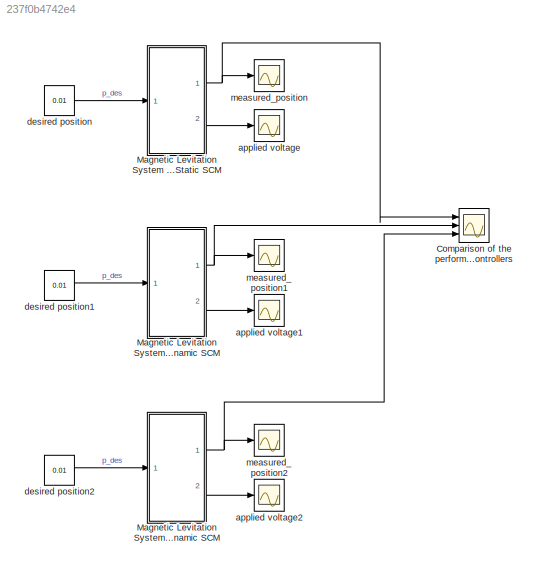
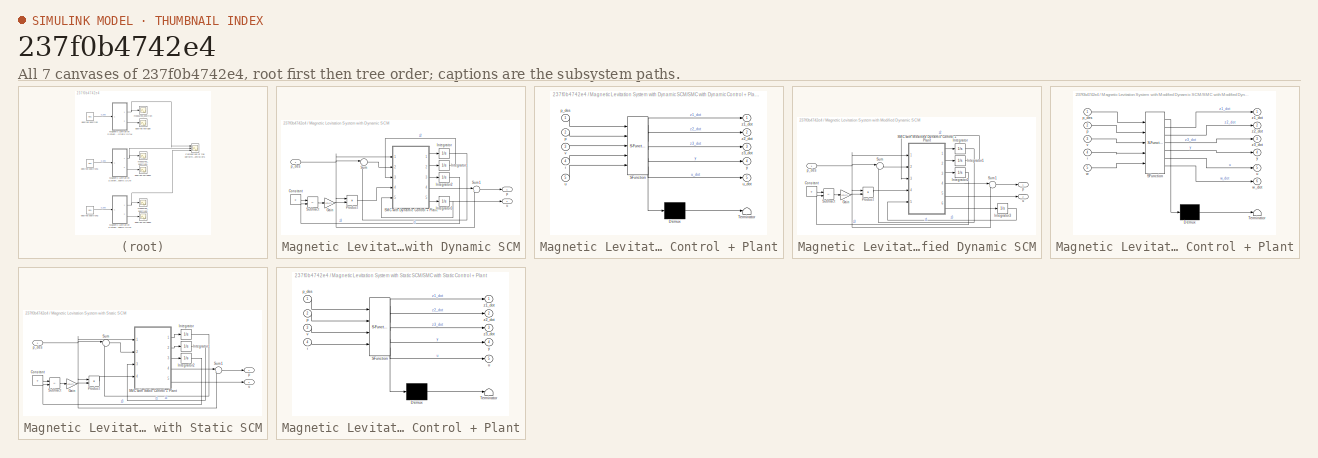
[diagram: thumbnail index - all 7 canvases of the model, root first then tree order]
MODEL slx_237f0b4742e4
KIND model
CONFIG AbsTol = auto
CONFIG EnableMultiTasking = off
CONFIG FixedStep = 0.0001
CONFIG MaxStep = auto
CONFIG MinStep = auto
CONFIG RelTol = 1e-3
CONFIG SampleTimeConstraint = Unconstrained
CONFIG SolverName = ode1
CONFIG StartTime = 0.0
CONFIG StopTime = 1
WORKSPACE source: mxarray member
WORKSPACE C = 0.00014
WORKSPACE g = 9.81
WORKSPACE m = 0.0118
BLOCK [Scope] Comparison of the performance of the 3 Controllers
  Floating = off
  NumInputPorts = 3
  Ports = [3]
  ScopeSpecificationString = Simulink.scopes.TimeScopeBlockCfg('CurrentConfiguration', extmgr.ConfigurationSet(extmgr.Configuration('Core','General UI',true),extmgr.Configuration('Core','Source UI',true),extmgr.Configuration('Sources','WiredSimulink',true,'DataLoggingVariableName','ScopeData6'),extmgr.Configuration('Visuals','Time Domain',true,'SerializedDisplays',{struct('MinYLimReal','0.00833','MaxYLimReal','0.01907','YLabe...<+1581ch>
BLOCK [SubSystem] Magnetic Levitation System with Dynamic SCM
  Ports = [1, 2]
  RequestExecContextInheritance = off
BLOCK [Constant] Magnetic Levitation System with Dynamic SCM/Constant
  Value = g
BLOCK [Gain] Magnetic Levitation System with Dynamic SCM/Gain
  Gain = (m/C)
BLOCK [Integrator] Magnetic Levitation System with Dynamic SCM/Integrator
  InitialCondition = 0.008
  Ports = [1, 1]
BLOCK [Integrator] Magnetic Levitation System with Dynamic SCM/Integrator1
  Ports = [1, 1]
BLOCK [Integrator] Magnetic Levitation System with Dynamic SCM/Integrator2
  InitialCondition = 9
  Ports = [1, 1]
BLOCK [Integrator] Magnetic Levitation System with Dynamic SCM/Integrator3
  InitialCondition = 20
  Ports = [1, 1]
BLOCK [Product] Magnetic Levitation System with Dynamic SCM/Product
  Ports = [2, 1]
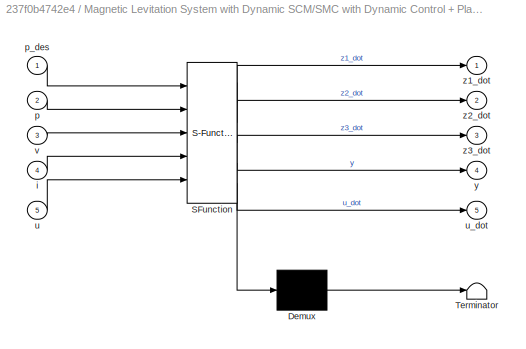
BLOCK [SubSystem] Magnetic Levitation System with Dynamic SCM/SMC with Dynamic Control + Plant
  ErrorFcn = Stateflow.Translate.translate
  PermitHierarchicalResolution = ExplicitOnly
  Ports = [5, 5]
  RequestExecContextInheritance = off
  SFBlockType = MATLAB Function
  TreatAsAtomicUnit = on
BLOCK [Demux] Magnetic Levitation System with Dynamic SCM/SMC with Dynamic Control + Plant/ Demux 
  Outputs = 1
  Ports = [1, 1]
BLOCK [S-Function] Magnetic Levitation System with Dynamic SCM/SMC with Dynamic Control + Plant/ SFunction 
  EnableBusSupport = on
  FunctionName = sf_sfun
  PortCounts = [5 6]
  Ports = [5, 6]
  SFcnIsStateOwnerBlock = off
  SFunctionDeploymentMode = off
  Tag = Stateflow S-Function 1
BLOCK [Terminator] Magnetic Levitation System with Dynamic SCM/SMC with Dynamic Control + Plant/ Terminator 
BLOCK [Inport] Magnetic Levitation System with Dynamic SCM/SMC with Dynamic Control + Plant/i
  Port = 4
BLOCK [Inport] Magnetic Levitation System with Dynamic SCM/SMC with Dynamic Control + Plant/p
  Port = 2
BLOCK [Inport] Magnetic Levitation System with Dynamic SCM/SMC with Dynamic Control + Plant/p_des
BLOCK [Inport] Magnetic Levitation System with Dynamic SCM/SMC with Dynamic Control + Plant/u
  Port = 5
BLOCK [Outport] Magnetic Levitation System with Dynamic SCM/SMC with Dynamic Control + Plant/u_dot
  Port = 5
BLOCK [Inport] Magnetic Levitation System with Dynamic SCM/SMC with Dynamic Control + Plant/v
  Port = 3
BLOCK [Outport] Magnetic Levitation System with Dynamic SCM/SMC with Dynamic Control + Plant/y
  Port = 4
BLOCK [Outport] Magnetic Levitation System with Dynamic SCM/SMC with Dynamic Control + Plant/z1_dot
BLOCK [Outport] Magnetic Levitation System with Dynamic SCM/SMC with Dynamic Control + Plant/z2_dot
  Port = 2
BLOCK [Outport] Magnetic Levitation System with Dynamic SCM/SMC with Dynamic Control + Plant/z3_dot
  Port = 3
BLOCK [Sum] Magnetic Levitation System with Dynamic SCM/Subtract
  IconShape = rectangular
  Inputs = +-
  Ports = [2, 1]
BLOCK [Sum] Magnetic Levitation System with Dynamic SCM/Sum
  Inputs = |++
  NameLocation = top
  Ports = [2, 1]
BLOCK [Sum] Magnetic Levitation System with Dynamic SCM/Sum1
  Inputs = |++
  Ports = [2, 1]
BLOCK [Outport] Magnetic Levitation System with Dynamic SCM/p
BLOCK [Inport] Magnetic Levitation System with Dynamic SCM/p_des
BLOCK [Outport] Magnetic Levitation System with Dynamic SCM/u
  Port = 2
BLOCK [SubSystem] Magnetic Levitation System with Modified Dynamic SCM
  Ports = [1, 2]
  RequestExecContextInheritance = off
BLOCK [Constant] Magnetic Levitation System with Modified Dynamic SCM/Constant
  Value = g
BLOCK [Gain] Magnetic Levitation System with Modified Dynamic SCM/Gain
  Gain = (m/C)
BLOCK [Integrator] Magnetic Levitation System with Modified Dynamic SCM/Integrator
  InitialCondition = 0.008
  Ports = [1, 1]
BLOCK [Integrator] Magnetic Levitation System with Modified Dynamic SCM/Integrator1
  Ports = [1, 1]
BLOCK [Integrator] Magnetic Levitation System with Modified Dynamic SCM/Integrator2
  InitialCondition = 9
  Ports = [1, 1]
BLOCK [Integrator] Magnetic Levitation System with Modified Dynamic SCM/Integrator3
  Ports = [1, 1]
BLOCK [Product] Magnetic Levitation System with Modified Dynamic SCM/Product
  Ports = [2, 1]
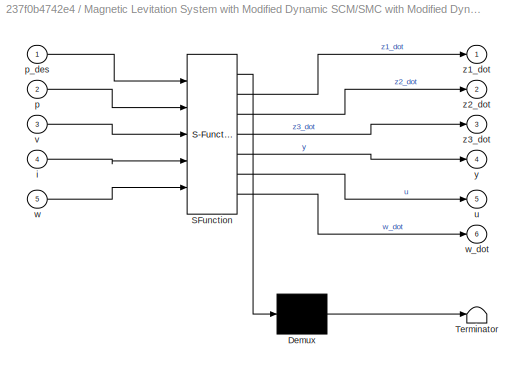
BLOCK [SubSystem] Magnetic Levitation System with Modified Dynamic SCM/SMC with Modified Dynamic Control + Plant
  ErrorFcn = Stateflow.Translate.translate
  PermitHierarchicalResolution = ExplicitOnly
  Ports = [5, 6]
  RequestExecContextInheritance = off
  SFBlockType = MATLAB Function
  TreatAsAtomicUnit = on
BLOCK [Demux] Magnetic Levitation System with Modified Dynamic SCM/SMC with Modified Dynamic Control + Plant/ Demux 
  Outputs = 1
  Ports = [1, 1]
BLOCK [S-Function] Magnetic Levitation System with Modified Dynamic SCM/SMC with Modified Dynamic Control + Plant/ SFunction 
  EnableBusSupport = on
  FunctionName = sf_sfun
  PortCounts = [5 7]
  Ports = [5, 7]
  SFcnIsStateOwnerBlock = off
  SFunctionDeploymentMode = off
  Tag = Stateflow S-Function 3
BLOCK [Terminator] Magnetic Levitation System with Modified Dynamic SCM/SMC with Modified Dynamic Control + Plant/ Terminator 
BLOCK [Inport] Magnetic Levitation System with Modified Dynamic SCM/SMC with Modified Dynamic Control + Plant/i
  Port = 4
BLOCK [Inport] Magnetic Levitation System with Modified Dynamic SCM/SMC with Modified Dynamic Control + Plant/p
  Port = 2
BLOCK [Inport] Magnetic Levitation System with Modified Dynamic SCM/SMC with Modified Dynamic Control + Plant/p_des
BLOCK [Outport] Magnetic Levitation System with Modified Dynamic SCM/SMC with Modified Dynamic Control + Plant/u
  Port = 5
BLOCK [Inport] Magnetic Levitation System with Modified Dynamic SCM/SMC with Modified Dynamic Control + Plant/v
  Port = 3
BLOCK [Inport] Magnetic Levitation System with Modified Dynamic SCM/SMC with Modified Dynamic Control + Plant/w
  Port = 5
BLOCK [Outport] Magnetic Levitation System with Modified Dynamic SCM/SMC with Modified Dynamic Control + Plant/w_dot
  Port = 6
BLOCK [Outport] Magnetic Levitation System with Modified Dynamic SCM/SMC with Modified Dynamic Control + Plant/y
  Port = 4
BLOCK [Outport] Magnetic Levitation System with Modified Dynamic SCM/SMC with Modified Dynamic Control + Plant/z1_dot
BLOCK [Outport] Magnetic Levitation System with Modified Dynamic SCM/SMC with Modified Dynamic Control + Plant/z2_dot
  Port = 2
BLOCK [Outport] Magnetic Levitation System with Modified Dynamic SCM/SMC with Modified Dynamic Control + Plant/z3_dot
  Port = 3
BLOCK [Sum] Magnetic Levitation System with Modified Dynamic SCM/Subtract
  IconShape = rectangular
  Inputs = +-
  Ports = [2, 1]
BLOCK [Sum] Magnetic Levitation System with Modified Dynamic SCM/Sum
  Inputs = |++
  NameLocation = top
  Ports = [2, 1]
BLOCK [Sum] Magnetic Levitation System with Modified Dynamic SCM/Sum1
  Inputs = |++
  Ports = [2, 1]
BLOCK [Outport] Magnetic Levitation System with Modified Dynamic SCM/p
BLOCK [Inport] Magnetic Levitation System with Modified Dynamic SCM/p_des
BLOCK [Outport] Magnetic Levitation System with Modified Dynamic SCM/u
  Port = 2
BLOCK [SubSystem] Magnetic Levitation System with Static SCM
  Ports = [1, 2]
  RequestExecContextInheritance = off
BLOCK [Constant] Magnetic Levitation System with Static SCM/Constant
  Value = g
BLOCK [Gain] Magnetic Levitation System with Static SCM/Gain
  Gain = (m/C)
BLOCK [Integrator] Magnetic Levitation System with Static SCM/Integrator
  InitialCondition = 0.008
  Ports = [1, 1]
BLOCK [Integrator] Magnetic Levitation System with Static SCM/Integrator1
  Ports = [1, 1]
BLOCK [Integrator] Magnetic Levitation System with Static SCM/Integrator2
  InitialCondition = 9
  Ports = [1, 1]
BLOCK [Product] Magnetic Levitation System with Static SCM/Product
  Ports = [2, 1]
BLOCK [SubSystem] Magnetic Levitation System with Static SCM/SMC with Static Control + Plant
  ErrorFcn = Stateflow.Translate.translate
  PermitHierarchicalResolution = ExplicitOnly
  Ports = [4, 5]
  RequestExecContextInheritance = off
  SFBlockType = MATLAB Function
  TreatAsAtomicUnit = on
BLOCK [Demux] Magnetic Levitation System with Static SCM/SMC with Static Control + Plant/ Demux 
  Outputs = 1
  Ports = [1, 1]
BLOCK [S-Function] Magnetic Levitation System with Static SCM/SMC with Static Control + Plant/ SFunction 
  EnableBusSupport = on
  FunctionName = sf_sfun
  PortCounts = [4 6]
  Ports = [4, 6]
  SFcnIsStateOwnerBlock = off
  SFunctionDeploymentMode = off
  Tag = Stateflow S-Function 2
BLOCK [Terminator] Magnetic Levitation System with Static SCM/SMC with Static Control + Plant/ Terminator 
BLOCK [Inport] Magnetic Levitation System with Static SCM/SMC with Static Control + Plant/i
  Port = 4
BLOCK [Inport] Magnetic Levitation System with Static SCM/SMC with Static Control + Plant/p
  Port = 2
BLOCK [Inport] Magnetic Levitation System with Static SCM/SMC with Static Control + Plant/p_des
BLOCK [Outport] Magnetic Levitation System with Static SCM/SMC with Static Control + Plant/u
  Port = 5
BLOCK [Inport] Magnetic Levitation System with Static SCM/SMC with Static Control + Plant/v
  Port = 3
BLOCK [Outport] Magnetic Levitation System with Static SCM/SMC with Static Control + Plant/y
  Port = 4
BLOCK [Outport] Magnetic Levitation System with Static SCM/SMC with Static Control + Plant/z1_dot
BLOCK [Outport] Magnetic Levitation System with Static SCM/SMC with Static Control + Plant/z2_dot
  Port = 2
BLOCK [Outport] Magnetic Levitation System with Static SCM/SMC with Static Control + Plant/z3_dot
  Port = 3
BLOCK [Sum] Magnetic Levitation System with Static SCM/Subtract
  IconShape = rectangular
  Inputs = +-
  Ports = [2, 1]
BLOCK [Sum] Magnetic Levitation System with Static SCM/Sum
  Inputs = |++
  NameLocation = top
  Ports = [2, 1]
BLOCK [Sum] Magnetic Levitation System with Static SCM/Sum1
  Inputs = |++
  Ports = [2, 1]
BLOCK [Outport] Magnetic Levitation System with Static SCM/p
BLOCK [Inport] Magnetic Levitation System with Static SCM/p_des
BLOCK [Outport] Magnetic Levitation System with Static SCM/u
  Port = 2
BLOCK [Scope] applied voltage
  Floating = off
  NumInputPorts = 1
  Ports = [1]
  ScopeSpecificationString = Simulink.scopes.TimeScopeBlockCfg('CurrentConfiguration', extmgr.ConfigurationSet(extmgr.Configuration('Core','General UI',true),extmgr.Configuration('Core','Source UI',true),extmgr.Configuration('Sources','WiredSimulink',true,'DataLoggingVariableName','ScopeData1'),extmgr.Configuration('Visuals','Time Domain',true,'SerializedDisplays',{struct('MinYLimReal','2.73557','MaxYLimReal','20.31509','YLab...<+1477ch>
BLOCK [Scope] applied voltage1
  Floating = off
  NumInputPorts = 1
  Ports = [1]
  ScopeSpecificationString = Simulink.scopes.TimeScopeBlockCfg('CurrentConfiguration', extmgr.ConfigurationSet(extmgr.Configuration('Core','General UI',true),extmgr.Configuration('Core','Source UI',true),extmgr.Configuration('Sources','WiredSimulink',true,'DataLoggingVariableName','ScopeData2'),extmgr.Configuration('Visuals','Time Domain',true,'SerializedDisplays',{struct('MinYLimReal','6.69412','MaxYLimReal','21.47843','YLab...<+1450ch>
BLOCK [Scope] applied voltage2
  Floating = off
  NumInputPorts = 1
  Ports = [1]
  ScopeSpecificationString = Simulink.scopes.TimeScopeBlockCfg('CurrentConfiguration', extmgr.ConfigurationSet(extmgr.Configuration('Core','General UI',true),extmgr.Configuration('Core','Source UI',true),extmgr.Configuration('Sources','WiredSimulink',true,'DataLoggingVariableName','ScopeData4'),extmgr.Configuration('Visuals','Time Domain',true,'SerializedDisplays',{struct('MinYLimReal','7.17984','MaxYLimReal','17.53926','YLab...<+1459ch>
BLOCK [Constant] desired position
  Value = 0.01
BLOCK [Constant] desired position1
  Value = 0.01
BLOCK [Constant] desired position2
  Value = 0.01
BLOCK [Scope] measured_position
  Floating = off
  NumInputPorts = 1
  Ports = [1]
  ScopeSpecificationString = Simulink.scopes.TimeScopeBlockCfg('CurrentConfiguration', extmgr.ConfigurationSet(extmgr.Configuration('Core','General UI',true),extmgr.Configuration('Core','Source UI',true),extmgr.Configuration('Sources','WiredSimulink',true),extmgr.Configuration('Visuals','Time Domain',true,'SerializedDisplays',{struct('MinYLimReal','0.00833','MaxYLimReal','0.01907','YLabelReal','','MinYLimMag','0.00833','MaxYL...<+1439ch>
BLOCK [Scope] measured_position1
  Floating = off
  NumInputPorts = 1
  Ports = [1]
  ScopeSpecificationString = Simulink.scopes.TimeScopeBlockCfg('CurrentConfiguration', extmgr.ConfigurationSet(extmgr.Configuration('Core','General UI',true),extmgr.Configuration('Core','Source UI',true),extmgr.Configuration('Sources','WiredSimulink',true,'DataLoggingVariableName','ScopeData3'),extmgr.Configuration('Visuals','Time Domain',true,'SerializedDisplays',{struct('MinYLimReal','0.00894','MaxYLimReal','0.01901','YLabe...<+1755ch>
BLOCK [Scope] measured_position2
  Floating = off
  NumInputPorts = 1
  Ports = [1]
  ScopeSpecificationString = Simulink.scopes.TimeScopeBlockCfg('CurrentConfiguration', extmgr.ConfigurationSet(extmgr.Configuration('Core','General UI',true),extmgr.Configuration('Core','Source UI',true),extmgr.Configuration('Sources','WiredSimulink',true,'DataLoggingVariableName','ScopeData5'),extmgr.Configuration('Visuals','Time Domain',true,'SerializedDisplays',{struct('MinYLimReal','0.00895','MaxYLimReal','0.01901','YLabe...<+1731ch>
LINE Magnetic Levitation System with Dynamic SCM/Constant:1 -> Magnetic Levitation System with Dynamic SCM/Subtract:1
LINE Magnetic Levitation System with Dynamic SCM/Gain:1 -> Magnetic Levitation System with Dynamic SCM/Product:2
LINE Magnetic Levitation System with Dynamic SCM/Integrator1:1 -> Magnetic Levitation System with Dynamic SCM/SMC with Dynamic Control + Plant:3
LINE Magnetic Levitation System with Dynamic SCM/Integrator2:1 -> Magnetic Levitation System with Dynamic SCM/Subtract:2
NET Magnetic Levitation System with Dynamic SCM/Integrator3:1 -> Magnetic Levitation System with Dynamic SCM/SMC with Dynamic Control + Plant:5, Magnetic Levitation System with Dynamic SCM/u:1
LINE Magnetic Levitation System with Dynamic SCM/Integrator:1 -> Magnetic Levitation System with Dynamic SCM/Sum:2
LINE Magnetic Levitation System with Dynamic SCM/Product:1 -> Magnetic Levitation System with Dynamic SCM/SMC with Dynamic Control + Plant:4
LINE Magnetic Levitation System with Dynamic SCM/SMC with Dynamic Control + Plant:1 -> Magnetic Levitation System with Dynamic SCM/Integrator:1
LINE Magnetic Levitation System with Dynamic SCM/SMC with Dynamic Control + Plant:2 -> Magnetic Levitation System with Dynamic SCM/Integrator1:1
LINE Magnetic Levitation System with Dynamic SCM/SMC with Dynamic Control + Plant:3 -> Magnetic Levitation System with Dynamic SCM/Integrator2:1
LINE Magnetic Levitation System with Dynamic SCM/SMC with Dynamic Control + Plant:4 -> Magnetic Levitation System with Dynamic SCM/Sum1:1
LINE Magnetic Levitation System with Dynamic SCM/SMC with Dynamic Control + Plant:5 -> Magnetic Levitation System with Dynamic SCM/Integrator3:1
LINE Magnetic Levitation System with Dynamic SCM/Subtract:1 -> Magnetic Levitation System with Dynamic SCM/Gain:1
LINE Magnetic Levitation System with Dynamic SCM/Sum1:1 -> Magnetic Levitation System with Dynamic SCM/p:1
LINE Magnetic Levitation System with Dynamic SCM/Sum:1 -> Magnetic Levitation System with Dynamic SCM/SMC with Dynamic Control + Plant:2
NET Magnetic Levitation System with Dynamic SCM/p_des:1 -> Magnetic Levitation System with Dynamic SCM/Product:1, Magnetic Levitation System with Dynamic SCM/SMC with Dynamic Control + Plant:1, Magnetic Levitation System with Dynamic SCM/Sum1:2, Magnetic Levitation System with Dynamic SCM/Sum:1
NET Magnetic Levitation System with Dynamic SCM:1 -> Comparison of the performance of the 3 Controllers:2, measured_position1:1
LINE Magnetic Levitation System with Dynamic SCM:2 -> applied voltage1:1
LINE Magnetic Levitation System with Modified Dynamic SCM/Constant:1 -> Magnetic Levitation System with Modified Dynamic SCM/Subtract:1
LINE Magnetic Levitation System with Modified Dynamic SCM/Gain:1 -> Magnetic Levitation System with Modified Dynamic SCM/Product:2
LINE Magnetic Levitation System with Modified Dynamic SCM/Integrator1:1 -> Magnetic Levitation System with Modified Dynamic SCM/SMC with Modified Dynamic Control + Plant:3
LINE Magnetic Levitation System with Modified Dynamic SCM/Integrator2:1 -> Magnetic Levitation System with Modified Dynamic SCM/Subtract:2
LINE Magnetic Levitation System with Modified Dynamic SCM/Integrator3:1 -> Magnetic Levitation System with Modified Dynamic SCM/SMC with Modified Dynamic Control + Plant:5
LINE Magnetic Levitation System with Modified Dynamic SCM/Integrator:1 -> Magnetic Levitation System with Modified Dynamic SCM/Sum:2
LINE Magnetic Levitation System with Modified Dynamic SCM/Product:1 -> Magnetic Levitation System with Modified Dynamic SCM/SMC with Modified Dynamic Control + Plant:4
LINE Magnetic Levitation System with Modified Dynamic SCM/SMC with Modified Dynamic Control + Plant:1 -> Magnetic Levitation System with Modified Dynamic SCM/Integrator:1
LINE Magnetic Levitation System with Modified Dynamic SCM/SMC with Modified Dynamic Control + Plant:2 -> Magnetic Levitation System with Modified Dynamic SCM/Integrator1:1
LINE Magnetic Levitation System with Modified Dynamic SCM/SMC with Modified Dynamic Control + Plant:3 -> Magnetic Levitation System with Modified Dynamic SCM/Integrator2:1
LINE Magnetic Levitation System with Modified Dynamic SCM/SMC with Modified Dynamic Control + Plant:4 -> Magnetic Levitation System with Modified Dynamic SCM/Sum1:1
LINE Magnetic Levitation System with Modified Dynamic SCM/SMC with Modified Dynamic Control + Plant:5 -> Magnetic Levitation System with Modified Dynamic SCM/u:1
LINE Magnetic Levitation System with Modified Dynamic SCM/SMC with Modified Dynamic Control + Plant:6 -> Magnetic Levitation System with Modified Dynamic SCM/Integrator3:1
LINE Magnetic Levitation System with Modified Dynamic SCM/Subtract:1 -> Magnetic Levitation System with Modified Dynamic SCM/Gain:1
LINE Magnetic Levitation System with Modified Dynamic SCM/Sum1:1 -> Magnetic Levitation System with Modified Dynamic SCM/p:1
LINE Magnetic Levitation System with Modified Dynamic SCM/Sum:1 -> Magnetic Levitation System with Modified Dynamic SCM/SMC with Modified Dynamic Control + Plant:2
NET Magnetic Levitation System with Modified Dynamic SCM/p_des:1 -> Magnetic Levitation System with Modified Dynamic SCM/Product:1, Magnetic Levitation System with Modified Dynamic SCM/SMC with Modified Dynamic Control + Plant:1, Magnetic Levitation System with Modified Dynamic SCM/Sum1:2, Magnetic Levitation System with Modified Dynamic SCM/Sum:1
NET Magnetic Levitation System with Modified Dynamic SCM:1 -> Comparison of the performance of the 3 Controllers:3, measured_position2:1
LINE Magnetic Levitation System with Modified Dynamic SCM:2 -> applied voltage2:1
LINE Magnetic Levitation System with Static SCM/Constant:1 -> Magnetic Levitation System with Static SCM/Subtract:1
LINE Magnetic Levitation System with Static SCM/Gain:1 -> Magnetic Levitation System with Static SCM/Product:2
LINE Magnetic Levitation System with Static SCM/Integrator1:1 -> Magnetic Levitation System with Static SCM/SMC with Static Control + Plant:3
LINE Magnetic Levitation System with Static SCM/Integrator2:1 -> Magnetic Levitation System with Static SCM/Subtract:2
LINE Magnetic Levitation System with Static SCM/Integrator:1 -> Magnetic Levitation System with Static SCM/Sum:2
LINE Magnetic Levitation System with Static SCM/Product:1 -> Magnetic Levitation System with Static SCM/SMC with Static Control + Plant:4
LINE Magnetic Levitation System with Static SCM/SMC with Static Control + Plant:1 -> Magnetic Levitation System with Static SCM/Integrator:1
LINE Magnetic Levitation System with Static SCM/SMC with Static Control + Plant:2 -> Magnetic Levitation System with Static SCM/Integrator1:1
LINE Magnetic Levitation System with Static SCM/SMC with Static Control + Plant:3 -> Magnetic Levitation System with Static SCM/Integrator2:1
LINE Magnetic Levitation System with Static SCM/SMC with Static Control + Plant:4 -> Magnetic Levitation System with Static SCM/Sum1:1
LINE Magnetic Levitation System with Static SCM/SMC with Static Control + Plant:5 -> Magnetic Levitation System with Static SCM/u:1
LINE Magnetic Levitation System with Static SCM/Subtract:1 -> Magnetic Levitation System with Static SCM/Gain:1
LINE Magnetic Levitation System with Static SCM/Sum1:1 -> Magnetic Levitation System with Static SCM/p:1
LINE Magnetic Levitation System with Static SCM/Sum:1 -> Magnetic Levitation System with Static SCM/SMC with Static Control + Plant:2
NET Magnetic Levitation System with Static SCM/p_des:1 -> Magnetic Levitation System with Static SCM/Product:1, Magnetic Levitation System with Static SCM/SMC with Static Control + Plant:1, Magnetic Levitation System with Static SCM/Sum1:2, Magnetic Levitation System with Static SCM/Sum:1
NET Magnetic Levitation System with Static SCM:1 -> Comparison of the performance of the 3 Controllers:1, measured_position:1
LINE Magnetic Levitation System with Static SCM:2 -> applied voltage:1
LINE desired position1:1 -> Magnetic Levitation System with Dynamic SCM:1
LINE desired position2:1 -> Magnetic Levitation System with Modified Dynamic SCM:1
LINE desired position:1 -> Magnetic Levitation System with Static SCM:1
note: NET lines group one-source signal fan-out (src -> all destinations, sorted); 1:1 wires keep LINE
CHART Magnetic Levitation System
with Dynamic SCM/SMC with Dynamic Control + Plant states=1 transitions=1
  STATE_LABEL 'eML_blk_kernel()'
  STATE_LABEL 'SCRIPT:\nfunction [z1_dot, z2_dot, z3_dot, y, u_dot]= fcn(p_des, p, v, i, u)\n\n%%\n% x1 = p (position)\n% x2 = v (velocity)\n% x3 = i (current)\n% u = e (applied voltage)\n\ng = 9.81;\nC = 1.4*10^-4; \nR = 28.7;\nL1 = 0.65;\nm = 11.87*10^-3;\n\ntau = 50000;\nm1 = 93;\nm2 = 2882;\nm3 = 29760;\n\nL = L1 + 2*C/p;\n\n% Defining State variables\nx1 = p;\nx2 = v;\nx3 = i;\nx1_des = p_des;\n\nz1 = x1 - x1_des;\nz2 = x2;            ...<+754ch>'
CHART Magnetic Levitation System
with Static SCM/SMC with Static Control + Plant states=1 transitions=1
  STATE_LABEL 'eML_blk_kernel()'
  STATE_LABEL 'SCRIPT:\nfunction [z1_dot, z2_dot, z3_dot, y, u]= fcn(p_des, p, v, i)\n\n%%\n% x1 = p (position)\n% x2 = v (velocity)\n% x3 = i (current)\n% u = e (applied voltage)\n\ng = 9.81;\nC = 1.4*10^-4; \nR = 28.7;\nL1 = 0.65;\nm = 11.87*10^-3  ;\n\nW = 350;\nlambda_1 = 61;\nlambda_2 = 930;\n\nL = L1 + 2*C/p;\n\n% Defining State variables\nx1 = p;\nx2 = v;\nx3 = i;\nx1_des = p_des;\n\nz1 = x1 - x1_des;\nz2 = x2;                   % x...<+379ch>'
CHART Magnetic Levitation System
with Modified Dynamic SCM/SMC with Modified Dynamic Control + Plant states=1 transitions=1
  STATE_LABEL 'eML_blk_kernel()'
  STATE_LABEL 'SCRIPT:\nfunction [z1_dot, z2_dot, z3_dot, y, u, w_dot]= fcn(p_des, p, v, i, w)\n\n%%\n% x1 = p (position)\n% x2 = v (velocity)\n% x3 = i (current)\n% u = e (applied voltage)\n\ng = 9.81;\nC = 1.4*10^-4; \nR = 28.7;\nL1 = 0.65;\nm = 11.87*10^-3;\n\nW2 = 100;\nc1 = 29760;\nc2 = 2882;\nc3 = 93;\n\nL = L1 + 2*C/p;\n\n% Defining State variables\nx1 = p;\nx2 = v;\nx3 = i;\nx1_des = p_des;\n\nz1 = x1 - x1_des;\nz2 = x2;            ...<+405ch>'
CHART  states=0 transitions=0
CHART  states=0 transitions=0
CHART  states=0 transitions=0
